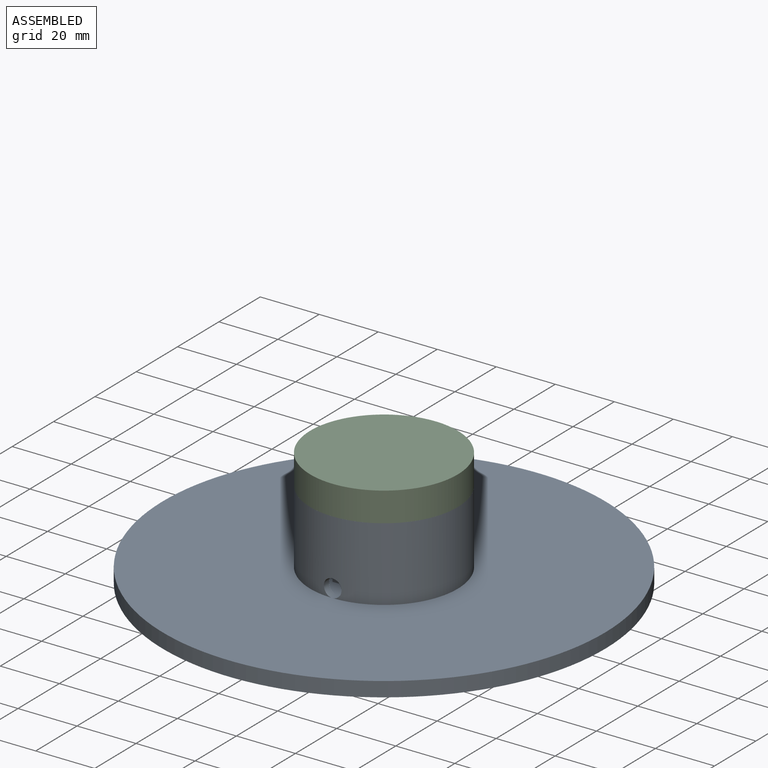
[diagram: assembled view]
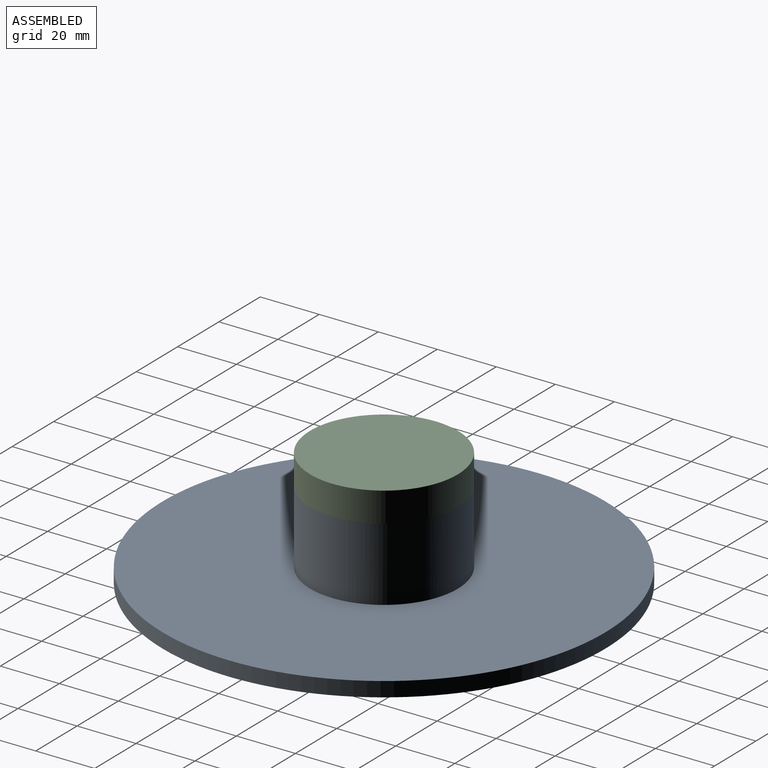
[diagram: assembled view, second angle]
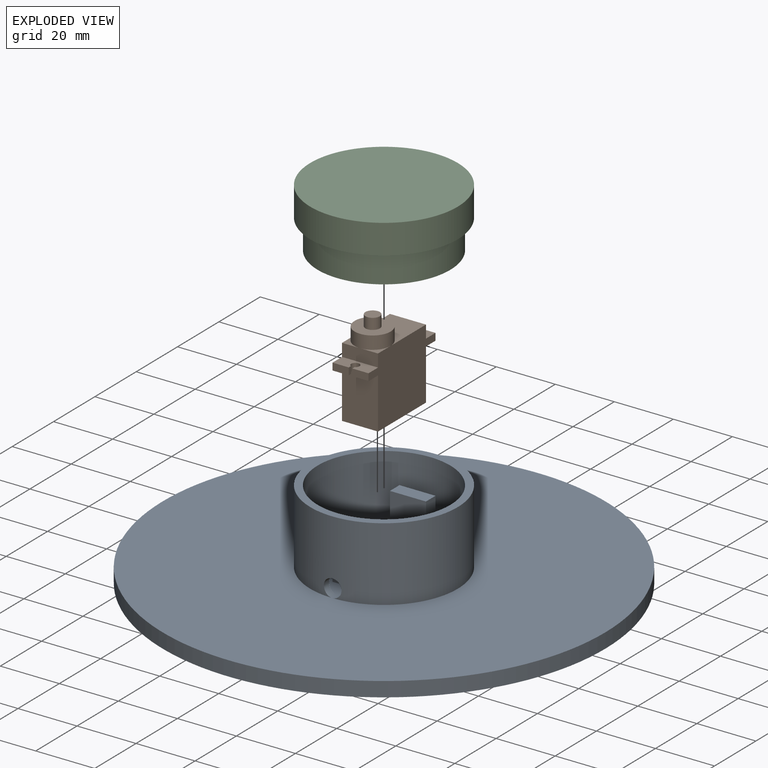
[diagram: exploded view]
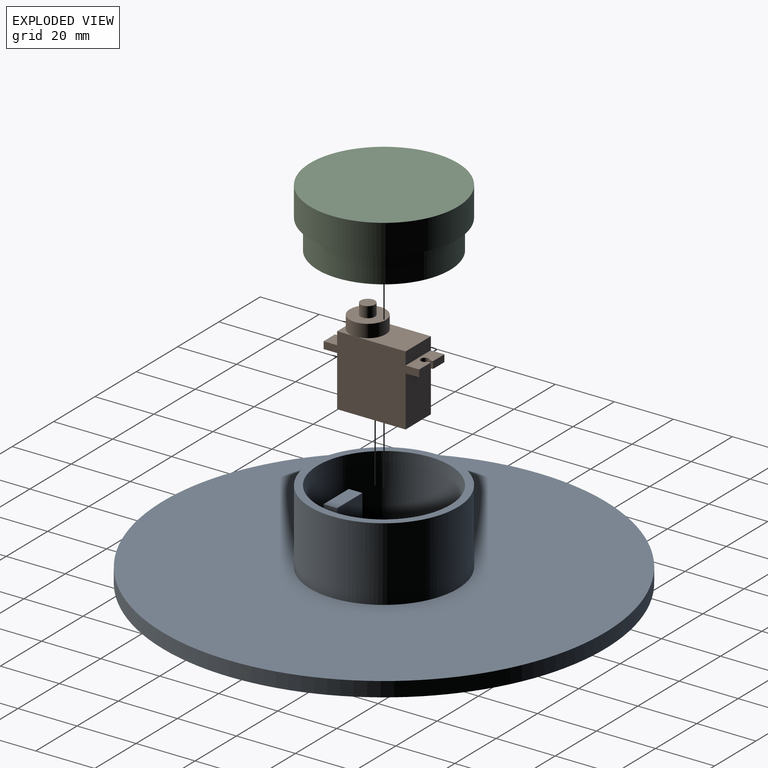
[diagram: exploded view, second angle]
FCSTD DOCUMENT  (FreeCAD 1.0R39109 (Git))
Label: Unnamed1
License: All rights reserved
LicenseURL: https://en.wikipedia.org/wiki/All_rights_reserved
objects: App::FeaturePython×10, App::Link×6, Assembly::JointGroup×1, Assembly::ViewGroup×1, Assembly::AssemblyObject×1, Part::FeaturePython×1, Part::Box×1, Part::Cut×1
note: 3 computed .brp shape members not serialized (recipe doc carries the construction recipe); baked Part::Feature solids carry a one-line shape summary decoded from their .brp
EXTERNAL_REF file=base.FCStd obj=Body
EXTERNAL_REF file=servo.FCStd obj=Body
EXTERNAL_REF file=shoulder_base.FCStd obj=Body

FEATURE [App::Link] Body  label="base"
  LinkedObject = -> <external base.FCStd>#Body
FEATURE [App::FeaturePython] GroundedJoint  # Assembly grounded joint (typed FeaturePython)
  ObjectToGround = -> Body
FEATURE [App::Link] Body001  label="servo"
  LinkPlacement = pos=(4e-16,8e-16,5) rot=(0,0,1;4.71239rad)
  LinkedObject = -> <external servo.FCStd>#Body
  Placement = pos=(4e-16,8e-16,5) rot=(0,0,1;4.71239rad)
FEATURE [App::FeaturePython] Joint  label="Distance"  # Assembly joint (typed FeaturePython)
  Activated = true
  AngleMax = 0
  AngleMin = 0
  Detach1 = false
  Detach2 = false
  Distance = 0
  Distance2 = 0
  EnableAngleMax = false
  EnableAngleMin = false
  EnableLengthMax = false
  EnableLengthMin = false
  JointType = 5 (Distance)
  LengthMax = 0
  LengthMin = 0
  Placement1 = pos=(0,-6.1,12.197) rot=(-0.57735,-0.57735,-0.57735;2.0944rad)
  Placement2 = pos=(-6.1,-13.9,13.6) rot=(0.57735,-0.57735,0.57735;4.18879rad)
  Reference1 = -> Assembly [Body001.Face5,Body001.Face5]
  Reference2 = -> Assembly [Body.Face12,Body.Face12]
FEATURE [App::FeaturePython] Joint001  label="Distance001"  # Assembly joint (typed FeaturePython)
  Activated = true
  AngleMax = 0
  AngleMin = 0
  Detach1 = false
  Detach2 = false
  Distance = 0
  Distance2 = 0
  EnableAngleMax = false
  EnableAngleMin = false
  EnableLengthMax = false
  EnableLengthMin = false
  JointType = 5 (Distance)
  LengthMax = 0
  LengthMin = 0
  Placement1 = pos=(13.8622,-1.82e-14,17.2) rot=(0,0,1;0rad)
  Placement2 = pos=(1e-16,-13.9,22.2) rot=(0,0,1;0rad)
  Reference1 = -> Assembly [Body001.Face16,Body001.Vertex40]
  Reference2 = -> Assembly [Body.Face17,Body.Face17]
FEATURE [App::FeaturePython] Joint002  label="Distance002"  # Assembly joint (typed FeaturePython)
  Activated = true
  AngleMax = 0
  AngleMin = 0
  Detach1 = false
  Detach2 = false
  Distance = 0
  Distance2 = 0
  EnableAngleMax = false
  EnableAngleMin = false
  EnableLengthMax = false
  EnableLengthMin = false
  JointType = 5 (Distance)
  LengthMax = 0
  LengthMin = 0
  Placement1 = pos=(11.6,6.5e-15,8.6) rot=(0,-1,0;1.5708rad)
  Placement2 = pos=(-2e-16,-11.6,14.4721) rot=(0,-0.707107,0.707107;3.14159rad)
  Reference1 = -> Assembly [Body001.Face15,Body001.Face15]
  Reference2 = -> Assembly [Body.Face11,Body.Face11]
FEATURE [App::Link] Body002  label="shoulder_base"
  LinkPlacement = pos=(-2e-16,1.21e-14,30) rot=(0,0,-1;1.51675rad)
  LinkedObject = -> <external shoulder_base.FCStd>#Body
  Placement = pos=(-2e-16,1.21e-14,30) rot=(0,0,-1;1.51675rad)
FEATURE [App::FeaturePython] Joint003  label="Cylindrical"  # Assembly joint (typed FeaturePython)
  Activated = true
  AngleMax = 0
  AngleMin = 0
  Detach1 = false
  Detach2 = false
  Distance = 0
  Distance2 = 0
  EnableAngleMax = false
  EnableAngleMin = false
  EnableLengthMax = false
  EnableLengthMin = false
  JointType = 2 (Cylindrical)
  LengthMax = 0
  LengthMin = 0
  Placement1 = pos=(1.21e-14,-5e-16,-30) rot=(0,0,1;1.51675rad)
  Placement2 = pos=(0,2.6e-15,17.5768) rot=(0,0,1;0rad)
  Reference1 = -> Assembly [Body002.?Face4,Body002.?Face4]
  Reference2 = -> Assembly [Body.Face7,Body.Face7]
FEATURE [App::FeaturePython] Joint004  label="Distance003"  # Assembly joint (typed FeaturePython)
  Activated = true
  AngleMax = 0
  AngleMin = 0
  Detach1 = false
  Detach2 = false
  Distance = 0
  Distance2 = 0
  EnableAngleMax = false
  EnableAngleMin = false
  EnableLengthMax = false
  EnableLengthMin = false
  JointType = 5 (Distance)
  LengthMax = 0
  LengthMin = 0
  Placement1 = pos=(1.71e-14,-1.32e-14,0) rot=(0,0,1;0rad)
  Placement2 = pos=(0,0,30) rot=(0,0,1;0rad)
  Reference1 = -> Assembly [Body002.Face2,Body002.Face2]
  Reference2 = -> Assembly [Body.Edge8,Body.Edge8]
FEATURE [Assembly::JointGroup] Joints
  Group = -> [GroundedJoint,Joint,Joint001,Joint002,Joint003,Joint004]
FEATURE [App::FeaturePython] Move  # WARN: FeaturePython — macro-defined, semantics opaque (R4)
  MoveType = 0
  MovementTransform = pos=(0,0,18) rot=(0,0,-1.00436;0rad)
  References = -> Assembly [Body002.]
FEATURE [App::FeaturePython] Move001  # WARN: FeaturePython — macro-defined, semantics opaque (R4)
  MoveType = 0
  MovementTransform = pos=(0,0,-33) rot=(0,0,1;0rad)
  References = -> Assembly [Body.]
FEATURE [App::FeaturePython] Move002  # WARN: FeaturePython — macro-defined, semantics opaque (R4)
  MoveType = 0
  MovementTransform = pos=(0,0,8.00001) rot=(0,0,1;0rad)
  References = -> Assembly [Body002.]
FEATURE [App::FeaturePython] Exploded_View  # WARN: FeaturePython — macro-defined, semantics opaque (R4)
  Moves = -> [Move,Move001,Move002]
FEATURE [Assembly::ViewGroup] Exploded_Views
  Group = -> [Exploded_View]
FEATURE [Assembly::AssemblyObject] Assembly  label="assembly"
  Group = -> [Joints,Body,GroundedJoint,Body001,Joint,Joint001,Joint002,Body002,Joint003,Joint004,Exploded_Views,Exploded_View,Move,Move001,Move002]
  Origin = -> Origin
  Type = Assembly
FEATURE [App::Link] base_CutLink
  LinkTransform = true
  LinkedObject = -> Body
FEATURE [App::Link] servo_CutLink
  LinkTransform = true
  LinkedObject = -> Body001
FEATURE [App::Link] shoulder_base_CutLink
  LinkTransform = true
  LinkedObject = -> Body002
FEATURE [Part::FeaturePython] SectionCutCompound  # WARN: FeaturePython — macro-defined, semantics opaque (R4)
  Mode = 0
  Objects = -> [base_CutLink,servo_CutLink,shoulder_base_CutLink]
  Tolerance = 0
FEATURE [Part::Box] SectionCutBoxX
  AttacherType = Attacher::AttachEngine3D
  Height = 41
  Length = 150.971
  Placement = pos=(0.01,-75.4928,-0.5) rot=(0,0,1;0rad)
  Width = 150.986
FEATURE [Part::Cut] SectionCutX
  Base = -> SectionCutCompound
  Refine = true
  Tool = -> SectionCutBoxX

RESOLVED EXTERNAL PARTS (link-assembly join: the EXTERNAL_REF files above that resolve inside this repo's crawl, each included once):
---- part base.FCStd = doc fcstd_153cadf95e5d ----
FCSTD DOCUMENT  (FreeCAD 1.0R39109 (Git))
Label: base
License: All rights reserved
LicenseURL: https://en.wikipedia.org/wiki/All_rights_reserved
objects: Sketcher::SketchObject×4, PartDesign::Pad×3, PartDesign::Pocket×1, PartDesign::SubtractiveCylinder×1, PartDesign::Body×1
note: 24 computed .brp shape members not serialized (recipe doc carries the construction recipe); baked Part::Feature solids carry a one-line shape summary decoded from their .brp

FEATURE [Sketcher::SketchObject] Sketch
  ArcFitTolerance = 1e-06
  AttachmentSupport = -> [XY_Plane]
  FullyConstrained = true
  MakeInternals = false
  MapMode = 5
  sketch-geometry (1):
    g0: Circle CenterX=0 CenterY=0 CenterZ=0 NormalX=0 NormalY=0 NormalZ=1 AngleXU=0 Radius=75
  constraints (2):
    c: Coincident(g0,g-1)
    c: Diameter(g0) = 150
FEATURE [PartDesign::Pad] Pad
  Direction = (0,0,1)
  Length = 5
  Length2 = 10
  Profile = -> Sketch
  ReferenceAxis = -> Sketch [N_Axis]
  Refine = true
  Suppressed = false
  Type = 0
FEATURE [Sketcher::SketchObject] Sketch001
  ArcFitTolerance = 1e-06
  AttachmentSupport = -> [Pad]
  ExternalGeometry = -> [Pad]
  FullyConstrained = true
  MakeInternals = false
  MapMode = 5
  Placement = pos=(0,0,5) rot=(0,0,1;0rad)
  sketch-geometry (1):
    g0: Circle CenterX=0 CenterY=0 CenterZ=0 NormalX=0 NormalY=0 NormalZ=1 AngleXU=0 Radius=25
  constraints (2):
    c: Diameter(g0) = 50
    c: Coincident(g0,g-1)
FEATURE [PartDesign::Pad] Pad001
  BaseFeature = -> Pad
  Direction = (0,0,1)
  Length = 25
  Length2 = 10
  Profile = -> Sketch001
  ReferenceAxis = -> Sketch001 [N_Axis]
  Refine = true
  Suppressed = false
  Type = 0
FEATURE [Sketcher::SketchObject] Sketch002
  ArcFitTolerance = 1e-06
  AttachmentSupport = -> [Pad001]
  ExternalGeometry = -> [Pad001]
  FullyConstrained = true
  MakeInternals = false
  MapMode = 5
  Placement = pos=(0,0,30) rot=(0,0,1;0rad)
  sketch-geometry (1):
    g0: Circle CenterX=0 CenterY=0 CenterZ=0 NormalX=0 NormalY=0 NormalZ=1 AngleXU=0 Radius=22.5
  constraints (2):
    c: Coincident(g0,g-1)
    c: Diameter(g0) = 45
FEATURE [PartDesign::Pocket] Pocket
  BaseFeature = -> Pad001
  Direction = (0,0,-1)
  Length = 25
  Length2 = 5
  Profile = -> Sketch002
  ReferenceAxis = -> Sketch002 [N_Axis]
  Refine = true
  Suppressed = false
  Type = 0
FEATURE [Sketcher::SketchObject] Sketch003
  ArcFitTolerance = 1e-06
  AttachmentSupport = -> [Pocket]
  FullyConstrained = true
  MakeInternals = false
  MapMode = 5
  Placement = pos=(0,0,5) rot=(0,0,1;0rad)
  sketch-geometry (18):
    g0: LineSegment [constr] StartX=-6.1 StartY=-16.2 StartZ=0 EndX=6.1 EndY=-16.2 EndZ=0
    g1: LineSegment [constr] StartX=6.1 StartY=-16.2 StartZ=0 EndX=6.1 EndY=16.2 EndZ=0
    g2: LineSegment [constr] StartX=6.1 StartY=16.2 StartZ=0 EndX=-6.1 EndY=16.2 EndZ=0
    g3: LineSegment [constr] StartX=-6.1 StartY=16.2 StartZ=0 EndX=-6.1 EndY=-16.2 EndZ=0
    g4: GeomPoint [constr] X=0 Y=0 Z=0
    g5: LineSegment [constr] StartX=-6.1 StartY=-11.6 StartZ=0 EndX=6.1 EndY=-11.6 EndZ=0
    g6: LineSegment [constr] StartX=6.1 StartY=-11.6 StartZ=0 EndX=6.1 EndY=11.6 EndZ=0
    g7: LineSegment [constr] StartX=6.1 StartY=11.6 StartZ=0 EndX=-6.1 EndY=11.6 EndZ=0
    g8: LineSegment [constr] StartX=-6.1 StartY=11.6 StartZ=0 EndX=-6.1 EndY=-11.6 EndZ=0
    g9: GeomPoint [constr] X=0 Y=0 Z=0
    g10: LineSegment StartX=-6.1 StartY=16.2 StartZ=0 EndX=-6.1 EndY=11.6 EndZ=0
    g11: LineSegment StartX=-6.1 StartY=11.6 StartZ=0 EndX=6.1 EndY=11.6 EndZ=0
    g12: LineSegment StartX=6.1 StartY=11.6 StartZ=0 EndX=6.1 EndY=16.2 EndZ=0
    g13: LineSegment StartX=6.1 StartY=16.2 StartZ=0 EndX=-6.1 EndY=16.2 EndZ=0
    g14: LineSegment StartX=-6.1 StartY=-11.6 StartZ=0 EndX=-6.1 EndY=-16.2 EndZ=0
    g15: LineSegment StartX=-6.1 StartY=-16.2 StartZ=0 EndX=6.1 EndY=-16.2 EndZ=0
    g16: LineSegment StartX=6.1 StartY=-16.2 StartZ=0 EndX=6.1 EndY=-11.6 EndZ=0
    g17: LineSegment StartX=6.1 StartY=-11.6 StartZ=0 EndX=-6.1 EndY=-11.6 EndZ=0
  constraints (45):
    c: Coincident(g0,g1)
    c: Coincident(g1,g2)
    c: Coincident(g2,g3)
    c: Coincident(g3,g0)
    c: Horizontal(g0)
    c: Horizontal(g2)
    c: Vertical(g1)
    c: Vertical(g3)
    c: Symmetric(g2,g0,g4)
    c: Distance(g1,g3) = 12.2
    c: Distance(g0,g2) = 32.4
    c: Coincident(g4,g-1)
    c: Coincident(g5,g6)
    c: Coincident(g6,g7)
    c: Coincident(g7,g8)
    c: Coincident(g8,g5)
    c: Horizontal(g5)
    c: Horizontal(g7)
    c: Vertical(g6)
    c: Vertical(g8)
    c: Symmetric(g7,g5,g9)
    c: Distance(g6,g8) = 12.2
    c: Coincident(g10,g11)
    c: Coincident(g11,g12)
    c: Coincident(g12,g13)
    c: Coincident(g13,g10)
    c: Vertical(g10)
    c: Vertical(g12)
    c: Horizontal(g11)
    c: Horizontal(g13)
    c: Coincident(g10,g2)
    c: Coincident(g11,g6)
    c: Coincident(g14,g15)
    c: Coincident(g15,g16)
    c: Coincident(g16,g17)
    c: Coincident(g17,g14)
    c: Vertical(g14)
    c: Vertical(g16)
    c: Horizontal(g15)
    c: Horizontal(g17)
    c: Coincident(g14,g5)
    c: Coincident(g15,g0)
    c: Distance(g12,g12) = 4.6
    c: Distance(g13,g13) = 12.2
    c: Distance(g16,g16) = 4.6
FEATURE [PartDesign::Pad] Pad002
  BaseFeature = -> Pocket
  Direction = (0,0,1)
  Length = 17.2
  Length2 = 10
  Profile = -> Sketch003
  ReferenceAxis = -> Sketch003 [N_Axis]
  Refine = true
  Suppressed = false
  Type = 0
FEATURE [PartDesign::SubtractiveCylinder] Cylinder
  Angle = 360
  AttacherType = Attacher::AttachEngine3D
  AttachmentOffset = pos=(0,8,-6) rot=(0,0,1;0rad)
  AttachmentSupport = -> [Pad002]
  BaseFeature = -> Pad002
  FirstAngle = 0
  Height = 16
  MapMode = 5
  Placement = pos=(0,-10.2,8) rot=(1,0,0;1.5708rad)
  Radius = 3
  Refine = true
  SecondAngle = 0
  Suppressed = false
FEATURE [PartDesign::Body] Body
  AllowCompound = false
  Group = -> [Sketch,Pad,Sketch001,Pad001,Sketch002,Pocket,Sketch003,Pad002,Cylinder]
  Origin = -> Origin
  Tip = -> Cylinder
---- part servo.FCStd = doc fcstd_da254d175e70 ----
FCSTD DOCUMENT  (FreeCAD 1.0R39109 (Git))
Label: servo
License: All rights reserved
LicenseURL: https://en.wikipedia.org/wiki/All_rights_reserved
objects: Sketcher::SketchObject×4, PartDesign::Pad×3, App::VarSet×1, PartDesign::Pocket×1, PartDesign::Body×1
note: 21 computed .brp shape members not serialized (recipe doc carries the construction recipe); baked Part::Feature solids carry a one-line shape summary decoded from their .brp

FEATURE [Sketcher::SketchObject] Sketch
  ArcFitTolerance = 1e-06
  AttachmentSupport = -> [XZ_Plane]
  FullyConstrained = true
  MakeInternals = false
  MapMode = 5
  Placement = pos=(0,0,0) rot=(1,0,0;1.5708rad)
  sketch-geometry (21):
    g0: LineSegment [constr] StartX=-11.6 StartY=0 StartZ=0 EndX=11.6 EndY=0 EndZ=0
    g1: LineSegment [constr] StartX=11.6 StartY=0 StartZ=0 EndX=11.6 EndY=23.9 EndZ=0
    g2: LineSegment [constr] StartX=11.6 StartY=23.9 StartZ=0 EndX=-11.6 EndY=23.9 EndZ=0
    g3: LineSegment [constr] StartX=-11.6 StartY=23.9 StartZ=0 EndX=-11.6 EndY=0 EndZ=0
    g4: LineSegment [constr] StartX=-16.2 StartY=17.2 StartZ=0 EndX=16.2 EndY=17.2 EndZ=0
    g5: LineSegment [constr] StartX=16.2 StartY=17.2 StartZ=0 EndX=16.2 EndY=19.6 EndZ=0
    g6: LineSegment [constr] StartX=16.2 StartY=19.6 StartZ=0 EndX=-16.2 EndY=19.6 EndZ=0
    g7: LineSegment [constr] StartX=-16.2 StartY=19.6 StartZ=0 EndX=-16.2 EndY=17.2 EndZ=0
    g8: GeomPoint [constr] X=0 Y=18.4 Z=0
    g9: LineSegment StartX=-11.6 StartY=23.9 StartZ=0 EndX=-11.6 EndY=19.6 EndZ=0
    g10: LineSegment StartX=-11.6 StartY=19.6 StartZ=0 EndX=-16.2 EndY=19.6 EndZ=0
    g11: LineSegment StartX=-16.2 StartY=19.6 StartZ=0 EndX=-16.2 EndY=17.2 EndZ=0
    g12: LineSegment StartX=-16.2 StartY=17.2 StartZ=0 EndX=-11.6 EndY=17.2 EndZ=0
    g13: LineSegment StartX=-11.6 StartY=17.2 StartZ=0 EndX=-11.6 EndY=0 EndZ=0
    g14: LineSegment StartX=-11.6 StartY=0 StartZ=0 EndX=11.6 EndY=0 EndZ=0
    g15: LineSegment StartX=11.6 StartY=0 StartZ=0 EndX=11.6 EndY=17.2 EndZ=0
    g16: LineSegment StartX=11.6 StartY=17.2 StartZ=0 EndX=16.2 EndY=17.2 EndZ=0
    g17: LineSegment StartX=16.2 StartY=17.2 StartZ=0 EndX=16.2 EndY=19.6 EndZ=0
    g18: LineSegment StartX=16.2 StartY=19.6 StartZ=0 EndX=11.6 EndY=19.6 EndZ=0
    g19: LineSegment StartX=11.6 StartY=19.6 StartZ=0 EndX=11.6 EndY=23.9 EndZ=0
    g20: LineSegment StartX=11.6 StartY=23.9 StartZ=0 EndX=-11.6 EndY=23.9 EndZ=0
  constraints (52):
    c: Coincident(g0,g1)
    c: Coincident(g1,g2)
    c: Coincident(g2,g3)
    c: Coincident(g3,g0)
    c: Horizontal(g2)
    c: Vertical(g1)
    c: Vertical(g3)
    c: PointOnObject(g0,g-1)
    c: DistanceX(g2,g2) = 23.2
    c: Symmetric(g0,g0,g-2)
    c: Coincident(g4,g5)
    c: Coincident(g5,g6)
    c: Coincident(g6,g7)
    c: Coincident(g7,g4)
    c: Horizontal(g4)
    c: Horizontal(g6)
    c: Vertical(g5)
    c: Vertical(g7)
    c: Symmetric(g6,g4,g8)
    c: Distance(g5,g7) = 32.4
    c: Distance(g4,g6) = 2.4
    c: PointOnObject(g8,g-2)
    c: Distance(g0,g4) = 17.2
    c: Coincident(g2,g9)
    c: PointOnObject(g9,g3)
    c: Coincident(g9,g10)
    c: Coincident(g10,g6)
    c: Horizontal(g10)
    c: Coincident(g10,g11)
    c: Coincident(g11,g4)
    c: Coincident(g11,g12)
    c: PointOnObject(g12,g4)
    c: Coincident(g12,g13)
    c: Coincident(g13,g0)
    c: Vertical(g13)
    c: Coincident(g13,g14)
    c: Coincident(g14,g0)
    c: Coincident(g14,g15)
    c: PointOnObject(g15,g4)
    c: Vertical(g15)
    c: Coincident(g15,g16)
    c: Coincident(g16,g4)
    c: Coincident(g16,g17)
    c: Coincident(g17,g5)
    c: Coincident(g17,g18)
    c: PointOnObject(g18,g6)
    c: Coincident(g18,g19)
    c: Coincident(g19,g1)
    c: Vertical(g19)
    c: Coincident(g19,g20)
    c: Coincident(g20,g9)
    c: Distance(g20,g6) = 4.3
FEATURE [PartDesign::Pad] Pad
  Direction = (0,-1,2e-16)
  Length = 12.2
  Length2 = 10
  Midplane = true
  Placement = pos=(0,0,0) rot=(1,0,0;1.5708rad)
  Profile = -> Sketch
  ReferenceAxis = -> Sketch [N_Axis]
  Refine = true
  Suppressed = false
  Type = 0
FEATURE [Sketcher::SketchObject] Sketch001
  ArcFitTolerance = 1e-06
  AttachmentSupport = -> [Pad]
  ExternalGeometry = -> [Pad]
  FullyConstrained = true
  MakeInternals = false
  MapMode = 5
  Placement = pos=(0,4.4e-15,19.6) rot=(0,0,1;3.14159rad)
  sketch-geometry (12):
    g0: GeomPoint X=-16.2 Y=0.6 Z=0
    g1: GeomPoint X=-16.2 Y=-0.6 Z=0
    g2: GeomPoint X=16.2 Y=0.6 Z=0
    g3: GeomPoint X=16.2 Y=-0.6 Z=0
    g4: LineSegment StartX=-16.2 StartY=0.6 StartZ=0 EndX=-15.1149 EndY=0.6 EndZ=0
    g5: LineSegment StartX=-16.2 StartY=-0.6 StartZ=0 EndX=-15.1149 EndY=-0.6 EndZ=0
    g6: LineSegment StartX=16.2 StartY=0.6 StartZ=0 EndX=15.1149 EndY=0.6 EndZ=0
    g7: LineSegment StartX=16.2 StartY=-0.6 StartZ=0 EndX=15.1149 EndY=-0.6 EndZ=0
    g8: ArcOfCircle CenterX=-13.85 CenterY=0 CenterZ=0 NormalX=0 NormalY=0 NormalZ=1 AngleXU=0 Radius=1.4 StartAngle=3.5845 EndAngle=8.98187
    g9: ArcOfCircle CenterX=13.85 CenterY=0 CenterZ=0 NormalX=0 NormalY=0 NormalZ=1 AngleXU=0 Radius=1.4 StartAngle=0.442911 EndAngle=5.84027
    g10: LineSegment StartX=-16.2 StartY=0.6 StartZ=0 EndX=-16.2 EndY=-0.6 EndZ=0
    g11: LineSegment StartX=16.2 StartY=0.6 StartZ=0 EndX=16.2 EndY=-0.6 EndZ=0
  constraints (27):
    c: PointOnObject(g0,g-3)
    c: PointOnObject(g2,g-4)
    c: Symmetric(g0,g1,g-1)
    c: Symmetric(g2,g3,g-1)
    c: Distance(g2,g3) = 1.2
    c: Distance(g0,g1) = 1.2
    c: Coincident(g4,g0)
    c: Horizontal(g4)
    c: Coincident(g5,g1)
    c: Horizontal(g5)
    c: Coincident(g6,g2)
    c: Horizontal(g6)
    c: Coincident(g7,g3)
    c: Horizontal(g7)
    c: PointOnObject(g8,g-1)
    c: Coincident(g8,g4)
    c: Coincident(g8,g5)
    c: Coincident(g9,g6)
    c: Coincident(g9,g7)
    c: Radius(g9) = 1.4
    c: Radius(g8) = 1.4
    c: Symmetric(g8,g9,g-2)
    c: Distance(g9,g8) = 27.7
    c: Coincident(g10,g0)
    c: Coincident(g10,g1)
    c: Coincident(g11,g2)
    c: Coincident(g11,g3)
FEATURE [App::VarSet] VarSet
  screw_hole_diameter = 1.4
FEATURE [PartDesign::Pocket] Pocket
  BaseFeature = -> Pad
  Direction = (0,0,-1)
  Length = 2.4
  Length2 = 5
  Placement = pos=(0,0,0) rot=(1,0,0;1.5708rad)
  Profile = -> Sketch001
  ReferenceAxis = -> Sketch001 [N_Axis]
  Refine = true
  Suppressed = false
  Type = 0
FEATURE [Sketcher::SketchObject] Sketch002
  ArcFitTolerance = 1e-06
  AttachmentSupport = -> [Pocket]
  ExternalGeometry = -> [Pocket]
  FullyConstrained = true
  MakeInternals = false
  MapMode = 5
  Placement = pos=(0,5.3e-15,23.9) rot=(0,0,1;3.14159rad)
  sketch-geometry (1):
    g0: Circle CenterX=-5.5 CenterY=0 CenterZ=0 NormalX=0 NormalY=0 NormalZ=1 AngleXU=0 Radius=6.1
  constraints (3):
    c: PointOnObject(g0,g-1)
    c: Tangent(g0,g-4)
    c: Diameter(g0) = 12.2
FEATURE [PartDesign::Pad] Pad001
  BaseFeature = -> Pocket
  Direction = (0,0,1)
  Length = 4.4
  Length2 = 10
  Placement = pos=(0,0,0) rot=(1,0,0;1.5708rad)
  Profile = -> Sketch002
  ReferenceAxis = -> Sketch002 [N_Axis]
  Refine = true
  Suppressed = false
  Type = 0
FEATURE [Sketcher::SketchObject] Sketch003
  ArcFitTolerance = 1e-06
  AttachmentSupport = -> [Pad001]
  ExternalGeometry = -> [Pad001]
  FullyConstrained = true
  MakeInternals = false
  MapMode = 5
  Placement = pos=(0,0,28.3) rot=(0,0,1;3.14159rad)
  sketch-geometry (1):
    g0: Circle CenterX=-5.5 CenterY=0 CenterZ=0 NormalX=0 NormalY=0 NormalZ=1 AngleXU=0 Radius=2.45
  constraints (2):
    c: Coincident(g0,g-3)
    c: Diameter(g0) = 4.9
FEATURE [PartDesign::Pad] Pad002
  BaseFeature = -> Pad001
  Direction = (0,0,1)
  Length = 3.7
  Length2 = 10
  Placement = pos=(0,0,0) rot=(1,0,0;1.5708rad)
  Profile = -> Sketch003
  ReferenceAxis = -> Sketch003 [N_Axis]
  Refine = true
  Suppressed = false
  Type = 0
FEATURE [PartDesign::Body] Body
  AllowCompound = false
  Group = -> [Sketch,Pad,Sketch001,Pocket,Sketch002,Pad001,Sketch003,Pad002]
  Origin = -> Origin
  Tip = -> Pad002
---- part shoulder_base.FCStd = doc fcstd_05dd317c67db ----
FCSTD DOCUMENT  (FreeCAD 1.0R39109 (Git))
Label: shoulder_base
License: All rights reserved
LicenseURL: https://en.wikipedia.org/wiki/All_rights_reserved
objects: Sketcher::SketchObject×4, PartDesign::Pad×2, PartDesign::Pocket×1, PartDesign::Body×1
note: 18 computed .brp shape members not serialized (recipe doc carries the construction recipe); baked Part::Feature solids carry a one-line shape summary decoded from their .brp

FEATURE [Sketcher::SketchObject] Sketch
  ArcFitTolerance = 1e-06
  AttachmentSupport = -> [XY_Plane]
  FullyConstrained = true
  MakeInternals = false
  MapMode = 5
  sketch-geometry (1):
    g0: Circle CenterX=0 CenterY=0 CenterZ=0 NormalX=0 NormalY=0 NormalZ=1 AngleXU=0 Radius=25
  constraints (3):
    c: Diameter(g0) = 50
    c: PointOnObject(g0,g-2)
    c: PointOnObject(g0,g-1)
FEATURE [PartDesign::Pad] Pad
  Direction = (0,0,1)
  Length = 10
  Length2 = 10
  Profile = -> Sketch
  ReferenceAxis = -> Sketch [N_Axis]
  Refine = true
  Suppressed = false
  Type = 0
FEATURE [Sketcher::SketchObject] Sketch001
  ArcFitTolerance = 1e-06
  AttachmentSupport = -> [Pad]
  FullyConstrained = true
  MakeInternals = false
  MapMode = 5
  Placement = pos=(0,0,0) rot=(1,0,0;3.14159rad)
  sketch-geometry (2):
    g0: Circle CenterX=0 CenterY=0 CenterZ=0 NormalX=0 NormalY=0 NormalZ=1 AngleXU=0 Radius=22.5
    g1: Circle CenterX=0 CenterY=0 CenterZ=0 NormalX=0 NormalY=0 NormalZ=1 AngleXU=0 Radius=20
  constraints (4):
    c: Diameter(g0) = 45
    c: Coincident(g0,g-1)
    c: Diameter(g1) = 40
    c: Coincident(g1,g0)
FEATURE [PartDesign::Pad] Pad001
  BaseFeature = -> Pad
  Direction = (0,0,-1)
  Length = 10
  Length2 = 10
  Profile = -> Sketch001
  ReferenceAxis = -> Sketch001 [N_Axis]
  Refine = true
  Suppressed = false
  Type = 0
FEATURE [Sketcher::SketchObject] Sketch002
  ArcFitTolerance = 1e-06
  AttachmentSupport = -> [Pad001]
  FullyConstrained = true
  MakeInternals = false
  MapMode = 5
  Placement = pos=(0,0,0) rot=(1,0,0;3.14159rad)
  sketch-geometry (1):
    g0: Circle CenterX=0 CenterY=0 CenterZ=0 NormalX=0 NormalY=0 NormalZ=1 AngleXU=0 Radius=20
  constraints (2):
    c: Diameter(g0) = 40
    c: Coincident(g0,g-1)
FEATURE [PartDesign::Pocket] Pocket
  BaseFeature = -> Pad001
  Direction = (0,0,1)
  Length = 5
  Length2 = 5
  Profile = -> Sketch002
  ReferenceAxis = -> Sketch002 [N_Axis]
  Refine = true
  Suppressed = false
  Type = 0
FEATURE [Sketcher::SketchObject] Sketch003
  ArcFitTolerance = 1e-06
  AttachmentSupport = -> [Pocket]
  FullyConstrained = true
  MakeInternals = false
  MapMode = 5
  Placement = pos=(0,0,10) rot=(0,0,1;0rad)
FEATURE [PartDesign::Body] Body
  AllowCompound = false
  Group = -> [Sketch,Pad,Sketch001,Pad001,Sketch002,Pocket,Sketch003]
  Origin = -> Origin
  Tip = -> Pocket
